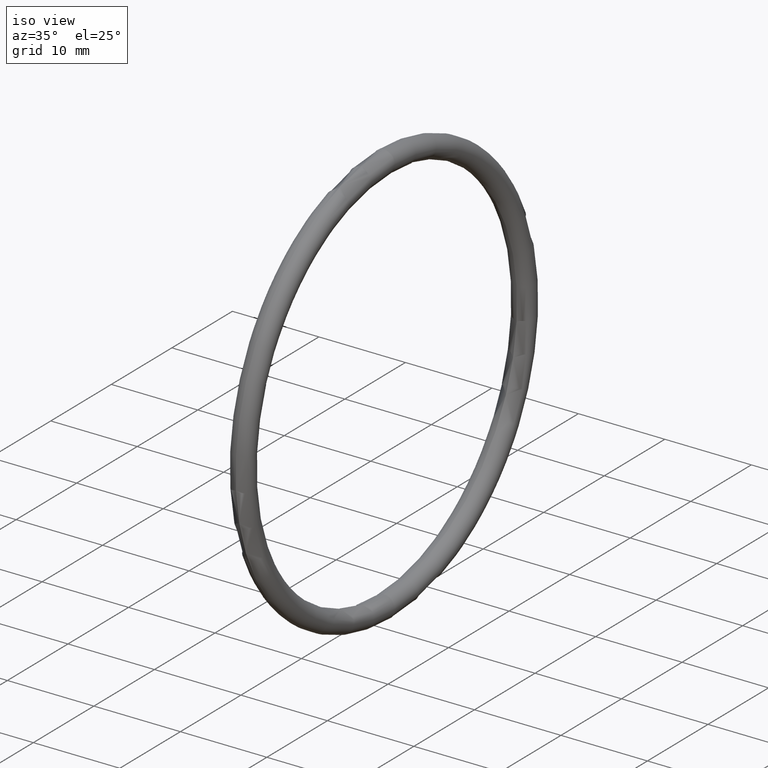
[diagram: clean part render]
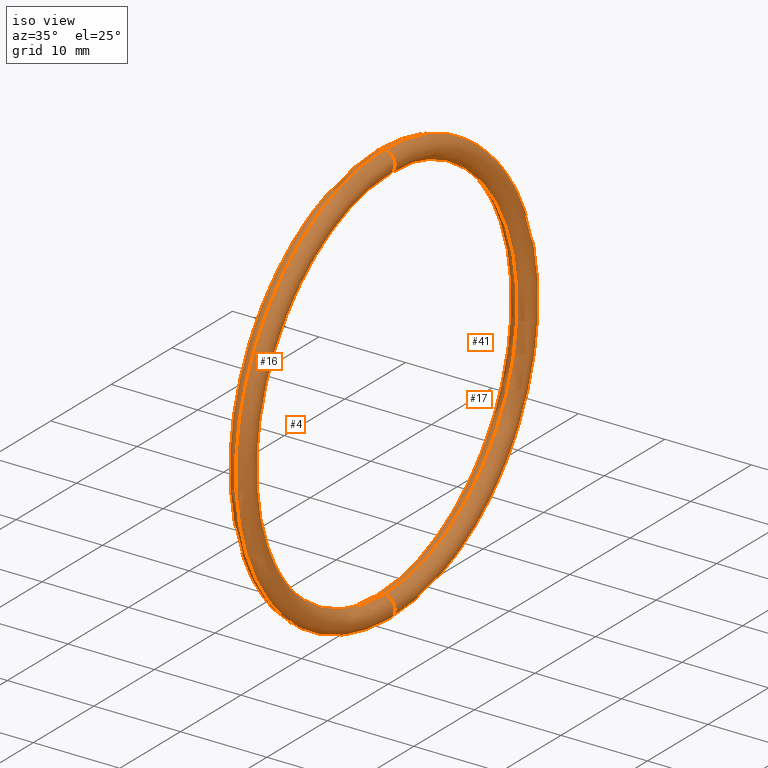
[diagram: same view with one multi-face feature highlighted, each face labeled with its STEP entity id]
A machine part, iso view. The highlighted faces form ONE feature: a constant-radius fillet chain: 4 tangent blend faces with common blend radius 1.27 mm. The faces share edges in the B-rep.
Their STEP definitions:
[1] entity #16 (Torus):
#5 = EDGE_LOOP ( 'NONE', ( #13, #7, #18, #21 ) ) ;
#7 = ORIENTED_EDGE ( 'NONE', *, *, #10, .T. ) ;
#8 = EDGE_CURVE ( 'NONE', #14, #12, #68, .T. ) ;
#9 = VERTEX_POINT ( 'NONE', #92 ) ;
#10 = EDGE_CURVE ( 'NONE', #14, #9, #95, .T. ) ;
#12 = VERTEX_POINT ( 'NONE', #96 ) ;
#13 = ORIENTED_EDGE ( 'NONE', *, *, #8, .F. ) ;
#14 = VERTEX_POINT ( 'NONE', #90 ) ;
#15 = VERTEX_POINT ( 'NONE', #89 ) ;
#16 = ADVANCED_FACE ( 'NONE', ( #88 ), #67, .T. ) ;
#18 = ORIENTED_EDGE ( 'NONE', *, *, #19, .T. ) ;
#19 = EDGE_CURVE ( 'NONE', #9, #15, #83, .T. ) ;
#20 = EDGE_CURVE ( 'NONE', #12, #15, #100, .T. ) ;
#21 = ORIENTED_EDGE ( 'NONE', *, *, #20, .F. ) ;
#55 = DIRECTION ( 'NONE',  ( -0.0000000000000000000, 1.000000000000000000, 1.224646799147353200E-016 ) ) ;
#56 = CARTESIAN_POINT ( 'NONE',  ( 0.1000000000000001200, 1.120551821219828000E-016, -0.9149999999999999200 ) ) ;
#57 = AXIS2_PLACEMENT_3D ( 'NONE', #56, #55, #93 ) ;
#60 = DIRECTION ( 'NONE',  ( 0.0000000000000000000, 0.0000000000000000000, 1.000000000000000000 ) ) ;
#61 = DIRECTION ( 'NONE',  ( -1.000000000000000000, -0.0000000000000000000, -0.0000000000000000000 ) ) ;
#66 = AXIS2_PLACEMENT_3D ( 'NONE', #87, #61, #60 ) ;
#67 = TOROIDAL_SURFACE ( 'NONE', #66, 0.9149999999999999200, 0.05000000000000000300 ) ;
#68 = CIRCLE ( 'NONE', #57, 0.05000000000000001000 ) ;
#77 = DIRECTION ( 'NONE',  ( 0.0000000000000000000, 0.0000000000000000000, 1.000000000000000000 ) ) ;
#78 = DIRECTION ( 'NONE',  ( -1.000000000000000000, -0.0000000000000000000, -0.0000000000000000000 ) ) ;
#79 = CARTESIAN_POINT ( 'NONE',  ( 0.1000000000000001200, 0.0000000000000000000, 0.0000000000000000000 ) ) ;
#80 = DIRECTION ( 'NONE',  ( 0.0000000000000000000, -1.000000000000000000, 0.0000000000000000000 ) ) ;
#81 = CARTESIAN_POINT ( 'NONE',  ( 0.1000000000000001200, 0.0000000000000000000, 0.9149999999999999200 ) ) ;
#82 = AXIS2_PLACEMENT_3D ( 'NONE', #81, #80, #102 ) ;
#83 = CIRCLE ( 'NONE', #82, 0.05000000000000001000 ) ;
#84 = CARTESIAN_POINT ( 'NONE',  ( 0.1000000000000001200, 0.0000000000000000000, 0.0000000000000000000 ) ) ;
#87 = CARTESIAN_POINT ( 'NONE',  ( 0.1000000000000001200, 0.0000000000000000000, 0.0000000000000000000 ) ) ;
#88 = FACE_OUTER_BOUND ( 'NONE', #5, .T. ) ;
#89 = CARTESIAN_POINT ( 'NONE',  ( 0.1000000000000001200, 0.0000000000000000000, 0.8649999999999998800 ) ) ;
#90 = CARTESIAN_POINT ( 'NONE',  ( 0.1000000000000001200, 1.181784161177195800E-016, -0.9649999999999999700 ) ) ;
#92 = CARTESIAN_POINT ( 'NONE',  ( 0.1000000000000001200, 0.0000000000000000000, 0.9649999999999999700 ) ) ;
#93 = DIRECTION ( 'NONE',  ( 0.0000000000000000000, -1.224646799147351700E-016, 1.000000000000000000 ) ) ;
#94 = AXIS2_PLACEMENT_3D ( 'NONE', #79, #78, #77 ) ;
#95 = CIRCLE ( 'NONE', #94, 0.9649999999999999700 ) ;
#96 = CARTESIAN_POINT ( 'NONE',  ( 0.1000000000000001200, 1.059319481262460500E-016, -0.8649999999999998800 ) ) ;
#97 = DIRECTION ( 'NONE',  ( 0.0000000000000000000, 0.0000000000000000000, 1.000000000000000000 ) ) ;
#98 = DIRECTION ( 'NONE',  ( -1.000000000000000000, -0.0000000000000000000, -0.0000000000000000000 ) ) ;
#99 = AXIS2_PLACEMENT_3D ( 'NONE', #84, #98, #97 ) ;
#100 = CIRCLE ( 'NONE', #99, 0.8649999999999998800 ) ;
#102 = DIRECTION ( 'NONE',  ( 0.0000000000000000000, 0.0000000000000000000, -1.000000000000000000 ) ) ;
[2] entity #4 (Torus):
#1 = ORIENTED_EDGE ( 'NONE', *, *, #20, .T. ) ;
#2 = EDGE_CURVE ( 'NONE', #12, #14, #69, .T. ) ;
#4 = ADVANCED_FACE ( 'NONE', ( #71 ), #75, .T. ) ;
#6 = ORIENTED_EDGE ( 'NONE', *, *, #2, .F. ) ;
#9 = VERTEX_POINT ( 'NONE', #92 ) ;
#10 = EDGE_CURVE ( 'NONE', #14, #9, #95, .T. ) ;
#12 = VERTEX_POINT ( 'NONE', #96 ) ;
#14 = VERTEX_POINT ( 'NONE', #90 ) ;
#15 = VERTEX_POINT ( 'NONE', #89 ) ;
#20 = EDGE_CURVE ( 'NONE', #12, #15, #100, .T. ) ;
#43 = ORIENTED_EDGE ( 'NONE', *, *, #10, .F. ) ;
#44 = EDGE_LOOP ( 'NONE', ( #43, #6, #1, #46 ) ) ;
#46 = ORIENTED_EDGE ( 'NONE', *, *, #48, .T. ) ;
#48 = EDGE_CURVE ( 'NONE', #15, #9, #110, .T. ) ;
#58 = AXIS2_PLACEMENT_3D ( 'NONE', #70, #91, #72 ) ;
#65 = DIRECTION ( 'NONE',  ( -1.000000000000000000, -0.0000000000000000000, -0.0000000000000000000 ) ) ;
#69 = CIRCLE ( 'NONE', #58, 0.05000000000000001000 ) ;
#70 = CARTESIAN_POINT ( 'NONE',  ( 0.1000000000000001200, 1.120551821219828000E-016, -0.9149999999999999200 ) ) ;
#71 = FACE_OUTER_BOUND ( 'NONE', #44, .T. ) ;
#72 = DIRECTION ( 'NONE',  ( 0.0000000000000000000, -1.224646799147351700E-016, 1.000000000000000000 ) ) ;
#73 = DIRECTION ( 'NONE',  ( 0.0000000000000000000, 0.0000000000000000000, 1.000000000000000000 ) ) ;
#74 = AXIS2_PLACEMENT_3D ( 'NONE', #76, #65, #73 ) ;
#75 = TOROIDAL_SURFACE ( 'NONE', #74, 0.9149999999999999200, 0.05000000000000000300 ) ;
#76 = CARTESIAN_POINT ( 'NONE',  ( 0.1000000000000001200, 0.0000000000000000000, 0.0000000000000000000 ) ) ;
#77 = DIRECTION ( 'NONE',  ( 0.0000000000000000000, 0.0000000000000000000, 1.000000000000000000 ) ) ;
#78 = DIRECTION ( 'NONE',  ( -1.000000000000000000, -0.0000000000000000000, -0.0000000000000000000 ) ) ;
#79 = CARTESIAN_POINT ( 'NONE',  ( 0.1000000000000001200, 0.0000000000000000000, 0.0000000000000000000 ) ) ;
#84 = CARTESIAN_POINT ( 'NONE',  ( 0.1000000000000001200, 0.0000000000000000000, 0.0000000000000000000 ) ) ;
#89 = CARTESIAN_POINT ( 'NONE',  ( 0.1000000000000001200, 0.0000000000000000000, 0.8649999999999998800 ) ) ;
#90 = CARTESIAN_POINT ( 'NONE',  ( 0.1000000000000001200, 1.181784161177195800E-016, -0.9649999999999999700 ) ) ;
#91 = DIRECTION ( 'NONE',  ( -0.0000000000000000000, 1.000000000000000000, 1.224646799147353200E-016 ) ) ;
#92 = CARTESIAN_POINT ( 'NONE',  ( 0.1000000000000001200, 0.0000000000000000000, 0.9649999999999999700 ) ) ;
#94 = AXIS2_PLACEMENT_3D ( 'NONE', #79, #78, #77 ) ;
#95 = CIRCLE ( 'NONE', #94, 0.9649999999999999700 ) ;
#96 = CARTESIAN_POINT ( 'NONE',  ( 0.1000000000000001200, 1.059319481262460500E-016, -0.8649999999999998800 ) ) ;
#97 = DIRECTION ( 'NONE',  ( 0.0000000000000000000, 0.0000000000000000000, 1.000000000000000000 ) ) ;
#98 = DIRECTION ( 'NONE',  ( -1.000000000000000000, -0.0000000000000000000, -0.0000000000000000000 ) ) ;
#99 = AXIS2_PLACEMENT_3D ( 'NONE', #84, #98, #97 ) ;
#100 = CIRCLE ( 'NONE', #99, 0.8649999999999998800 ) ;
#107 = DIRECTION ( 'NONE',  ( 0.0000000000000000000, 0.0000000000000000000, -1.000000000000000000 ) ) ;
#108 = DIRECTION ( 'NONE',  ( 0.0000000000000000000, -1.000000000000000000, 0.0000000000000000000 ) ) ;
#109 = AXIS2_PLACEMENT_3D ( 'NONE', #141, #108, #107 ) ;
#110 = CIRCLE ( 'NONE', #109, 0.05000000000000001000 ) ;
#141 = CARTESIAN_POINT ( 'NONE',  ( 0.1000000000000001200, 0.0000000000000000000, 0.9149999999999999200 ) ) ;
[3] entity #41 (Torus):
#2 = EDGE_CURVE ( 'NONE', #12, #14, #69, .T. ) ;
#9 = VERTEX_POINT ( 'NONE', #92 ) ;
#12 = VERTEX_POINT ( 'NONE', #96 ) ;
#14 = VERTEX_POINT ( 'NONE', #90 ) ;
#15 = VERTEX_POINT ( 'NONE', #89 ) ;
#23 = EDGE_CURVE ( 'NONE', #9, #14, #105, .T. ) ;
#39 = EDGE_CURVE ( 'NONE', #15, #12, #104, .T. ) ;
#40 = ORIENTED_EDGE ( 'NONE', *, *, #48, .F. ) ;
#41 = ADVANCED_FACE ( 'NONE', ( #124 ), #118, .T. ) ;
#42 = ORIENTED_EDGE ( 'NONE', *, *, #39, .T. ) ;
#45 = ORIENTED_EDGE ( 'NONE', *, *, #2, .T. ) ;
#48 = EDGE_CURVE ( 'NONE', #15, #9, #110, .T. ) ;
#49 = ORIENTED_EDGE ( 'NONE', *, *, #23, .F. ) ;
#50 = EDGE_LOOP ( 'NONE', ( #49, #40, #42, #45 ) ) ;
#58 = AXIS2_PLACEMENT_3D ( 'NONE', #70, #91, #72 ) ;
#69 = CIRCLE ( 'NONE', #58, 0.05000000000000001000 ) ;
#70 = CARTESIAN_POINT ( 'NONE',  ( 0.1000000000000001200, 1.120551821219828000E-016, -0.9149999999999999200 ) ) ;
#72 = DIRECTION ( 'NONE',  ( 0.0000000000000000000, -1.224646799147351700E-016, 1.000000000000000000 ) ) ;
#89 = CARTESIAN_POINT ( 'NONE',  ( 0.1000000000000001200, 0.0000000000000000000, 0.8649999999999998800 ) ) ;
#90 = CARTESIAN_POINT ( 'NONE',  ( 0.1000000000000001200, 1.181784161177195800E-016, -0.9649999999999999700 ) ) ;
#91 = DIRECTION ( 'NONE',  ( -0.0000000000000000000, 1.000000000000000000, 1.224646799147353200E-016 ) ) ;
#92 = CARTESIAN_POINT ( 'NONE',  ( 0.1000000000000001200, 0.0000000000000000000, 0.9649999999999999700 ) ) ;
#96 = CARTESIAN_POINT ( 'NONE',  ( 0.1000000000000001200, 1.059319481262460500E-016, -0.8649999999999998800 ) ) ;
#104 = CIRCLE ( 'NONE', #137, 0.8649999999999998800 ) ;
#105 = CIRCLE ( 'NONE', #114, 0.9649999999999999700 ) ;
#106 = DIRECTION ( 'NONE',  ( 0.0000000000000000000, 0.0000000000000000000, 1.000000000000000000 ) ) ;
#107 = DIRECTION ( 'NONE',  ( 0.0000000000000000000, 0.0000000000000000000, -1.000000000000000000 ) ) ;
#108 = DIRECTION ( 'NONE',  ( 0.0000000000000000000, -1.000000000000000000, 0.0000000000000000000 ) ) ;
#109 = AXIS2_PLACEMENT_3D ( 'NONE', #141, #108, #107 ) ;
#110 = CIRCLE ( 'NONE', #109, 0.05000000000000001000 ) ;
#111 = CARTESIAN_POINT ( 'NONE',  ( 0.1000000000000001200, 0.0000000000000000000, 0.0000000000000000000 ) ) ;
#112 = AXIS2_PLACEMENT_3D ( 'NONE', #111, #166, #143 ) ;
#114 = AXIS2_PLACEMENT_3D ( 'NONE', #133, #165, #106 ) ;
#117 = CARTESIAN_POINT ( 'NONE',  ( 0.1000000000000001200, 0.0000000000000000000, 0.0000000000000000000 ) ) ;
#118 = TOROIDAL_SURFACE ( 'NONE', #112, 0.9149999999999999200, 0.05000000000000000300 ) ;
#124 = FACE_OUTER_BOUND ( 'NONE', #50, .T. ) ;
#125 = DIRECTION ( 'NONE',  ( 0.0000000000000000000, 0.0000000000000000000, 1.000000000000000000 ) ) ;
#133 = CARTESIAN_POINT ( 'NONE',  ( 0.1000000000000001200, 0.0000000000000000000, 0.0000000000000000000 ) ) ;
#137 = AXIS2_PLACEMENT_3D ( 'NONE', #117, #140, #125 ) ;
#140 = DIRECTION ( 'NONE',  ( -1.000000000000000000, -0.0000000000000000000, -0.0000000000000000000 ) ) ;
#141 = CARTESIAN_POINT ( 'NONE',  ( 0.1000000000000001200, 0.0000000000000000000, 0.9149999999999999200 ) ) ;
#143 = DIRECTION ( 'NONE',  ( 0.0000000000000000000, 0.0000000000000000000, 1.000000000000000000 ) ) ;
#165 = DIRECTION ( 'NONE',  ( -1.000000000000000000, -0.0000000000000000000, -0.0000000000000000000 ) ) ;
#166 = DIRECTION ( 'NONE',  ( -1.000000000000000000, -0.0000000000000000000, -0.0000000000000000000 ) ) ;
[4] entity #17 (Torus):
#3 = EDGE_LOOP ( 'NONE', ( #26, #24, #22, #51 ) ) ;
#8 = EDGE_CURVE ( 'NONE', #14, #12, #68, .T. ) ;
#9 = VERTEX_POINT ( 'NONE', #92 ) ;
#12 = VERTEX_POINT ( 'NONE', #96 ) ;
#14 = VERTEX_POINT ( 'NONE', #90 ) ;
#15 = VERTEX_POINT ( 'NONE', #89 ) ;
#17 = ADVANCED_FACE ( 'NONE', ( #59 ), #62, .T. ) ;
#19 = EDGE_CURVE ( 'NONE', #9, #15, #83, .T. ) ;
#22 = ORIENTED_EDGE ( 'NONE', *, *, #8, .T. ) ;
#23 = EDGE_CURVE ( 'NONE', #9, #14, #105, .T. ) ;
#24 = ORIENTED_EDGE ( 'NONE', *, *, #23, .T. ) ;
#26 = ORIENTED_EDGE ( 'NONE', *, *, #19, .F. ) ;
#39 = EDGE_CURVE ( 'NONE', #15, #12, #104, .T. ) ;
#51 = ORIENTED_EDGE ( 'NONE', *, *, #39, .F. ) ;
#55 = DIRECTION ( 'NONE',  ( -0.0000000000000000000, 1.000000000000000000, 1.224646799147353200E-016 ) ) ;
#56 = CARTESIAN_POINT ( 'NONE',  ( 0.1000000000000001200, 1.120551821219828000E-016, -0.9149999999999999200 ) ) ;
#57 = AXIS2_PLACEMENT_3D ( 'NONE', #56, #55, #93 ) ;
#59 = FACE_OUTER_BOUND ( 'NONE', #3, .T. ) ;
#62 = TOROIDAL_SURFACE ( 'NONE', #64, 0.9149999999999999200, 0.05000000000000000300 ) ;
#63 = CARTESIAN_POINT ( 'NONE',  ( 0.1000000000000001200, 0.0000000000000000000, 0.0000000000000000000 ) ) ;
#64 = AXIS2_PLACEMENT_3D ( 'NONE', #63, #86, #85 ) ;
#68 = CIRCLE ( 'NONE', #57, 0.05000000000000001000 ) ;
#80 = DIRECTION ( 'NONE',  ( 0.0000000000000000000, -1.000000000000000000, 0.0000000000000000000 ) ) ;
#81 = CARTESIAN_POINT ( 'NONE',  ( 0.1000000000000001200, 0.0000000000000000000, 0.9149999999999999200 ) ) ;
#82 = AXIS2_PLACEMENT_3D ( 'NONE', #81, #80, #102 ) ;
#83 = CIRCLE ( 'NONE', #82, 0.05000000000000001000 ) ;
#85 = DIRECTION ( 'NONE',  ( 0.0000000000000000000, 0.0000000000000000000, 1.000000000000000000 ) ) ;
#86 = DIRECTION ( 'NONE',  ( -1.000000000000000000, -0.0000000000000000000, -0.0000000000000000000 ) ) ;
#89 = CARTESIAN_POINT ( 'NONE',  ( 0.1000000000000001200, 0.0000000000000000000, 0.8649999999999998800 ) ) ;
#90 = CARTESIAN_POINT ( 'NONE',  ( 0.1000000000000001200, 1.181784161177195800E-016, -0.9649999999999999700 ) ) ;
#92 = CARTESIAN_POINT ( 'NONE',  ( 0.1000000000000001200, 0.0000000000000000000, 0.9649999999999999700 ) ) ;
#93 = DIRECTION ( 'NONE',  ( 0.0000000000000000000, -1.224646799147351700E-016, 1.000000000000000000 ) ) ;
#96 = CARTESIAN_POINT ( 'NONE',  ( 0.1000000000000001200, 1.059319481262460500E-016, -0.8649999999999998800 ) ) ;
#102 = DIRECTION ( 'NONE',  ( 0.0000000000000000000, 0.0000000000000000000, -1.000000000000000000 ) ) ;
#104 = CIRCLE ( 'NONE', #137, 0.8649999999999998800 ) ;
#105 = CIRCLE ( 'NONE', #114, 0.9649999999999999700 ) ;
#106 = DIRECTION ( 'NONE',  ( 0.0000000000000000000, 0.0000000000000000000, 1.000000000000000000 ) ) ;
#114 = AXIS2_PLACEMENT_3D ( 'NONE', #133, #165, #106 ) ;
#117 = CARTESIAN_POINT ( 'NONE',  ( 0.1000000000000001200, 0.0000000000000000000, 0.0000000000000000000 ) ) ;
#125 = DIRECTION ( 'NONE',  ( 0.0000000000000000000, 0.0000000000000000000, 1.000000000000000000 ) ) ;
#133 = CARTESIAN_POINT ( 'NONE',  ( 0.1000000000000001200, 0.0000000000000000000, 0.0000000000000000000 ) ) ;
#137 = AXIS2_PLACEMENT_3D ( 'NONE', #117, #140, #125 ) ;
#140 = DIRECTION ( 'NONE',  ( -1.000000000000000000, -0.0000000000000000000, -0.0000000000000000000 ) ) ;
#165 = DIRECTION ( 'NONE',  ( -1.000000000000000000, -0.0000000000000000000, -0.0000000000000000000 ) ) ;